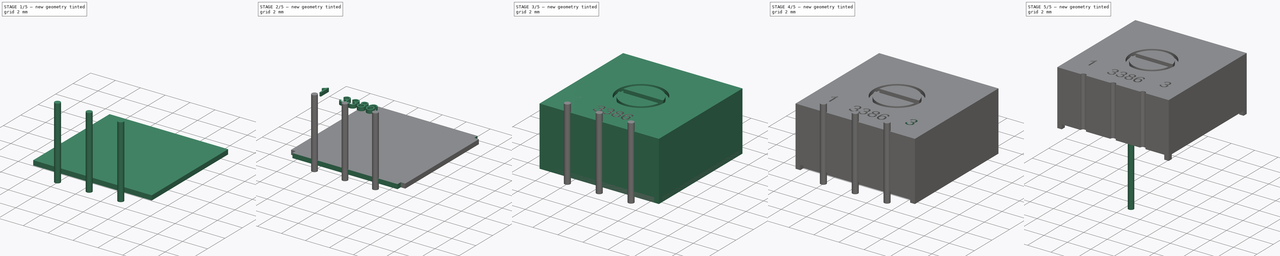
[diagram: build sequence overview — one tinted view per stage of 5, left to right]
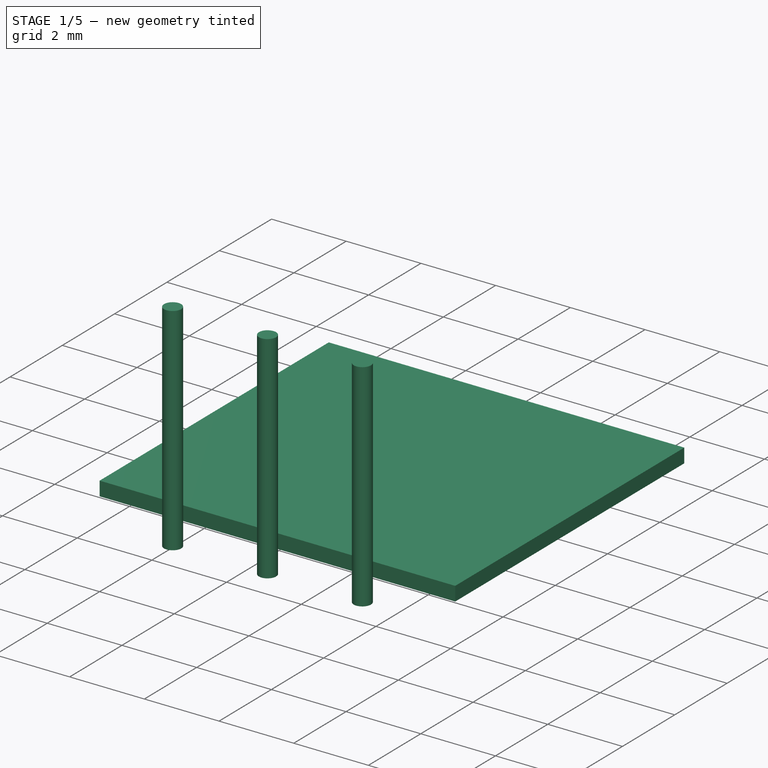
[diagram: stage 1 of 5 — iso view after this stage's code; geometry added in this stage tinted green]
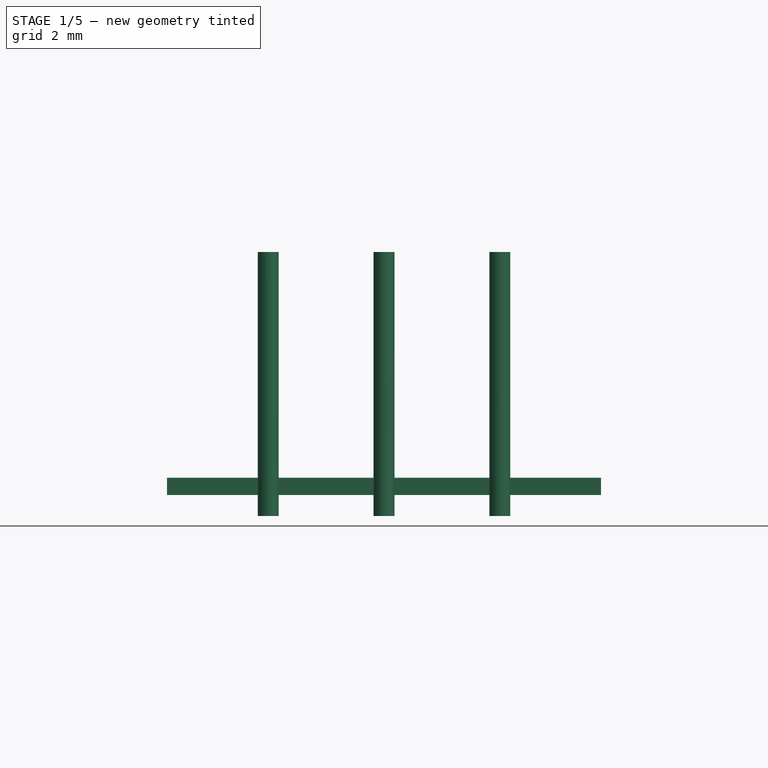
[diagram: stage 1 of 5 — front view after this stage's code; geometry added in this stage tinted green]
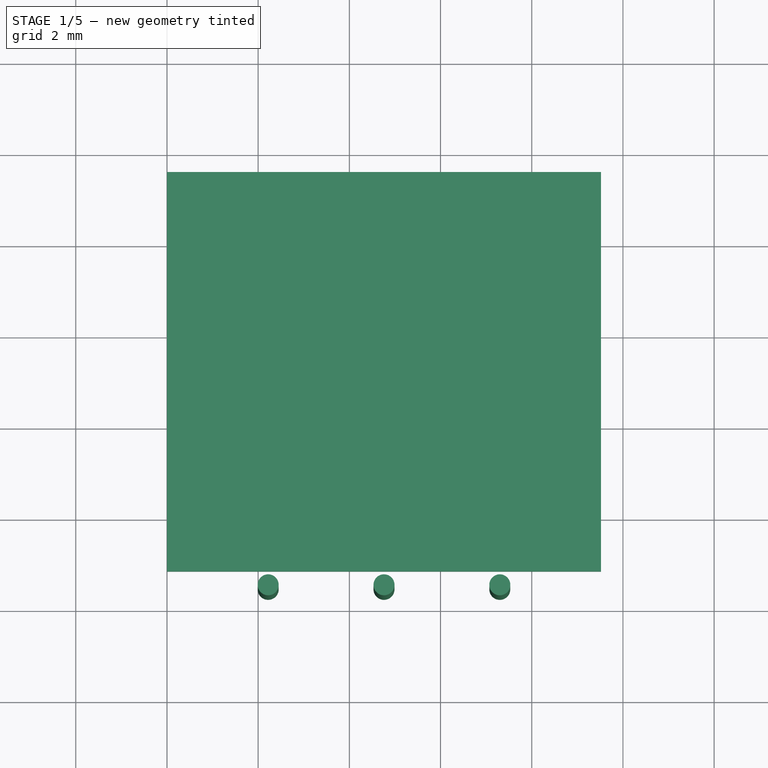
[diagram: stage 1 of 5 — top view after this stage's code; geometry added in this stage tinted green]
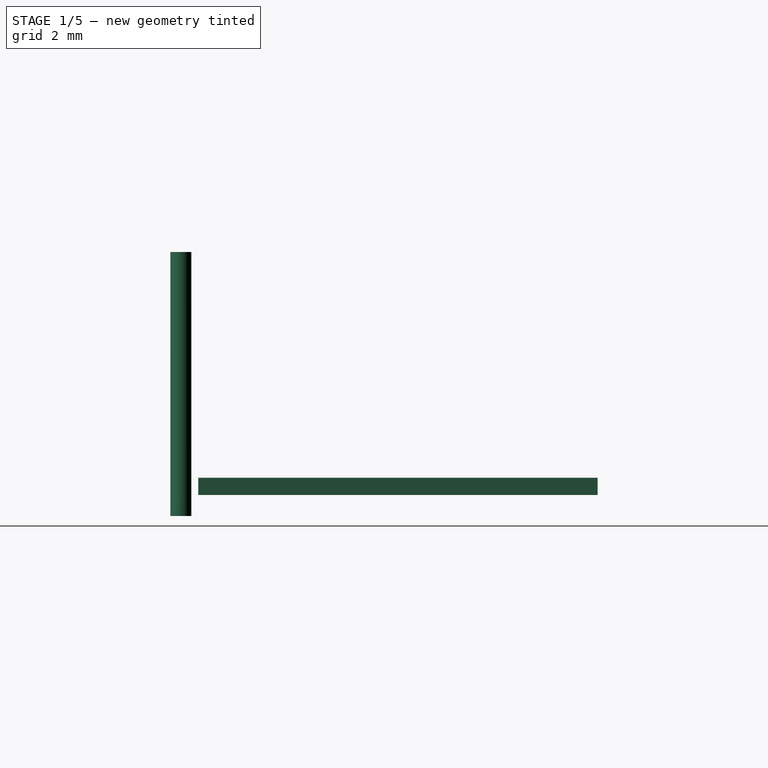
[diagram: stage 1 of 5 — right view after this stage's code; geometry added in this stage tinted green]
FCSTD DOCUMENT  (FreeCAD 0.18R4 (GitTag))
Label: 3386p
License: All rights reserved
LicenseURL: http://en.wikipedia.org/wiki/All_rights_reserved
objects: PartDesign::Body×9, Part::Cut×8, Sketcher::SketchObject×5, PartDesign::Pad×5, PartDesign::FeatureBase×4, Part::Part2DObjectPython×3, Part::FeaturePython×3, Part::Box×2, Part::MultiFuse×1
note: 45 computed .brp shape members not serialized (recipe doc carries the construction recipe); baked Part::Feature solids carry a one-line shape summary decoded from their .brp

FEATURE [Part::Box] Box001  label="Куб001"
  AttacherType = Attacher::AttachEngine3D
  Height = 0.38
  Length = 9.52
  Placement = pos=(0,-9.14,0) rot=(0,0,1;0rad)
  Width = 8.76
FEATURE [Sketcher::SketchObject] Sketch004
  MapMode = 5
  Support = -> [XY_Plane006]
  sketch-geometry (5):
    g0: Circle CenterX=4.76 CenterY=-7.32 CenterZ=0 NormalX=0 NormalY=0 NormalZ=1 AngleXU=0 Radius=0.23
    g1: LineSegment [constr] StartX=0 StartY=-9.38035 StartZ=0 EndX=9.52 EndY=-9.38035 EndZ=0
    g2: LineSegment [constr] StartX=9.52 StartY=-9.38035 StartZ=0 EndX=9.52 EndY=0 EndZ=0
    g3: LineSegment [constr] StartX=9.52 StartY=0 StartZ=0 EndX=0 EndY=0 EndZ=0
    g4: LineSegment [constr] StartX=0 StartY=0 StartZ=0 EndX=0 EndY=-9.38035 EndZ=0
  constraints (13):
    c: Radius(g0) = 0.23
    c: Coincident(g1,g2)
    c: Coincident(g2,g3)
    c: Coincident(g3,g4)
    c: Coincident(g4,g1)
    c: Horizontal(g1)
    c: Horizontal(g3)
    c: Vertical(g2)
    c: Vertical(g4)
    c: DistanceX(g1,g1) = 9.52
    c: Coincident(g3,g-1)
    c: Distance(g0,g-2) = 4.76
    c: Distance(g0,g-1) = 7.32
FEATURE [PartDesign::Pad] Pad005
  Length = 5.79
  Length2 = 100
  Profile = -> Sketch004
  Reversed = true
  Type = 0
FEATURE [PartDesign::Body] Body006  label="pin_004"
  Group = -> [Sketch004,Pad005]
  Origin = -> Origin006
  Placement = pos=(0,-2.2,0.33) rot=(0,0,1;0rad)
  Tip = -> Pad005
FEATURE [PartDesign::FeatureBase] Clone002
  BaseFeature = -> Body006
  Placement = pos=(0,-2.2,0.33) rot=(0,0,1;0rad)
FEATURE [PartDesign::Body] Body007
  Group = -> [Clone002]
  Origin = -> Origin007
  Placement = pos=(2.54,0,0) rot=(0,0,1;0rad)
  Tip = -> Clone002
FEATURE [PartDesign::FeatureBase] Clone003
  BaseFeature = -> Body006
  Placement = pos=(0,-2.2,0.33) rot=(0,0,1;0rad)
FEATURE [PartDesign::Body] Body008
  Group = -> [Clone003]
  Origin = -> Origin008
  Placement = pos=(-2.54,0,0) rot=(0,0,1;0rad)
  Tip = -> Clone003
FEATURE [Part::MultiFuse] Fusion
  Placement = pos=(0,0,5) rot=(0,0,1;0rad)
  Shapes = -> [Body008,Body007,Body006]
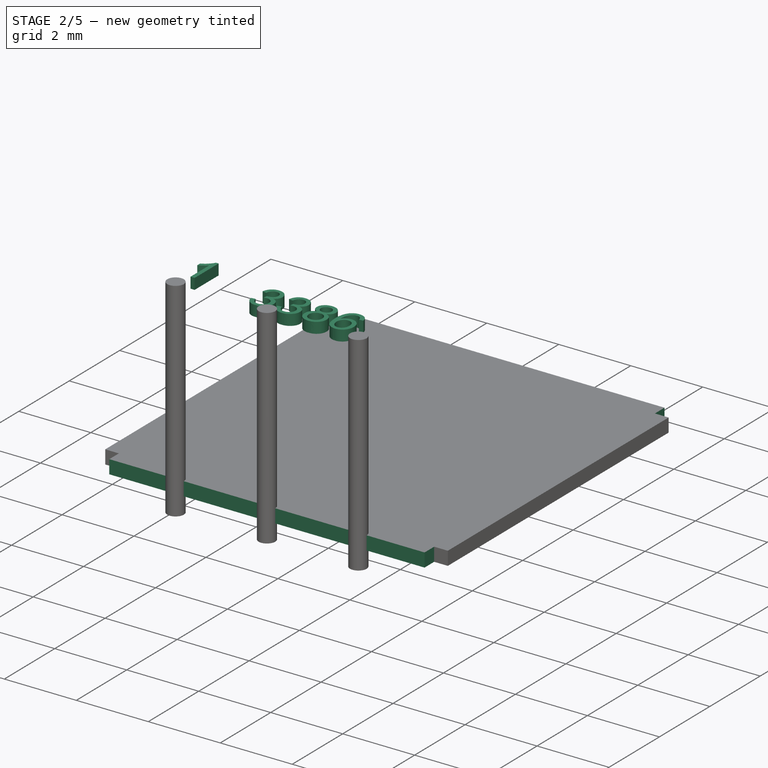
[diagram: stage 2 of 5 — iso view after this stage's code; geometry added in this stage tinted green]
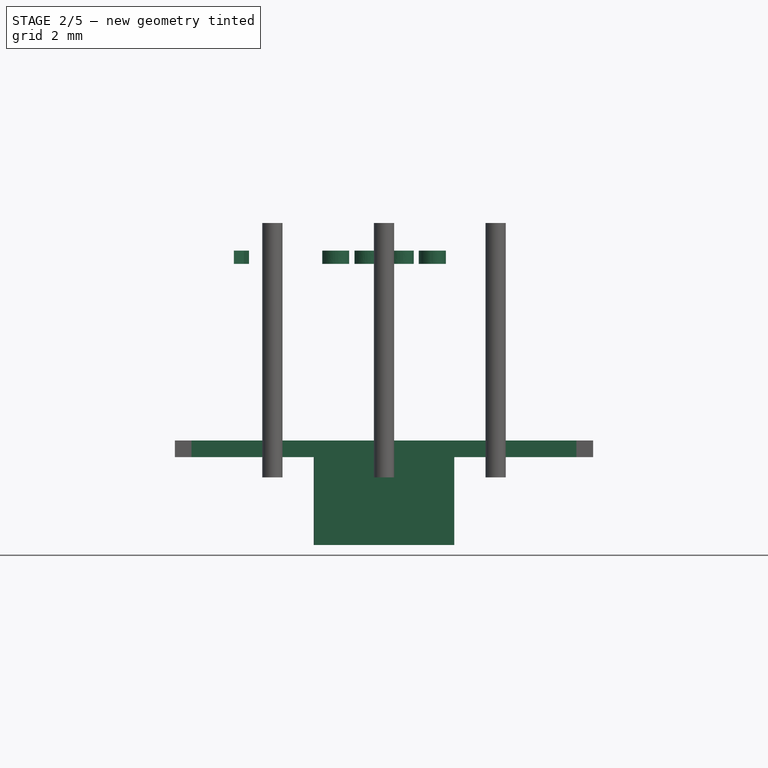
[diagram: stage 2 of 5 — front view after this stage's code; geometry added in this stage tinted green]
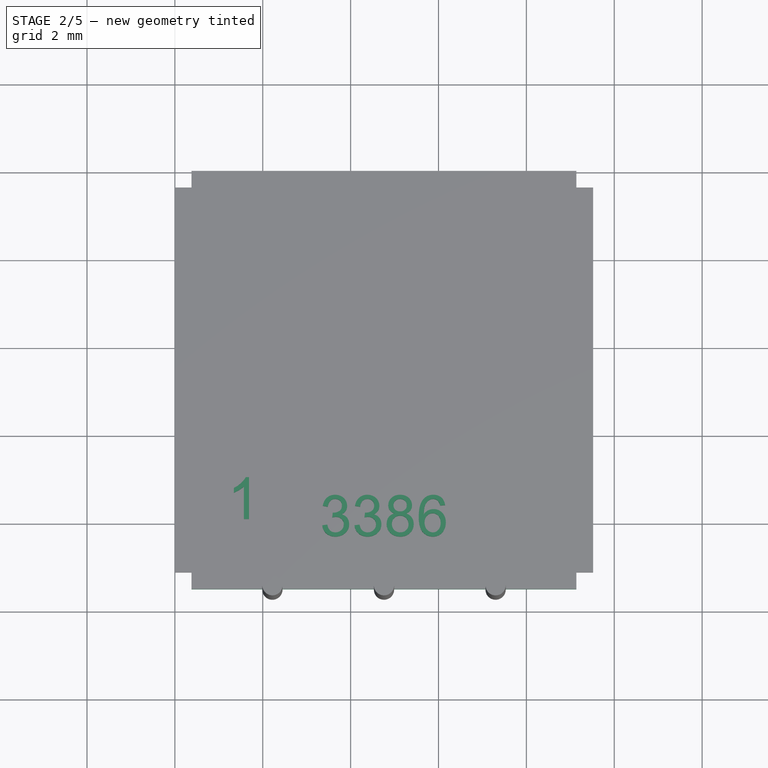
[diagram: stage 2 of 5 — top view after this stage's code; geometry added in this stage tinted green]
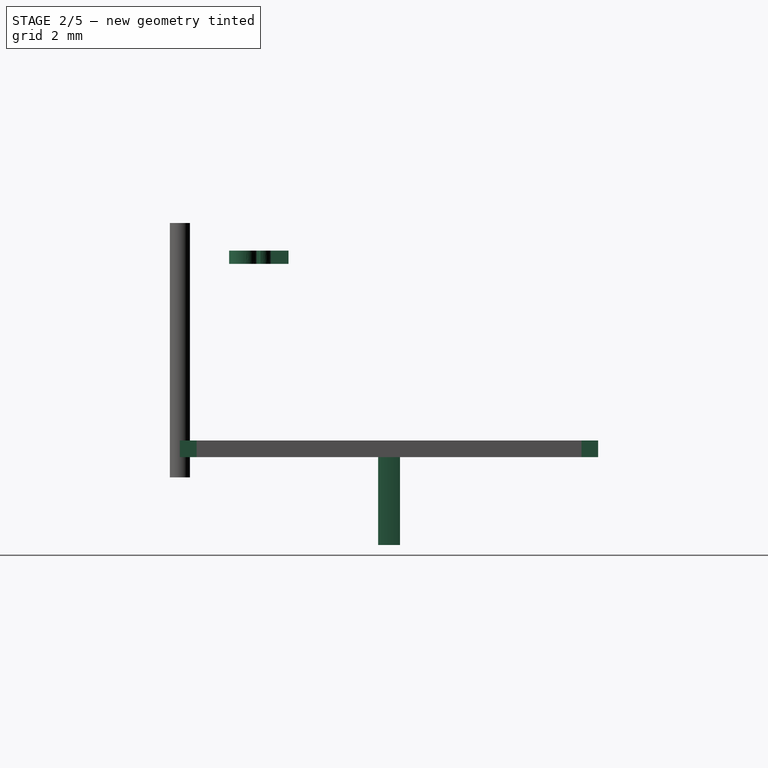
[diagram: stage 2 of 5 — right view after this stage's code; geometry added in this stage tinted green]
FEATURE [PartDesign::Body] Body005  label="circle"
  Group = -> [Sketch003,Pad003]
  Origin = -> Origin005
  Placement = pos=(0,0,4.7) rot=(0,0,1;0rad)
  Tip = -> Pad003
FEATURE [PartDesign::Pad] Pad004
  Length = 2
  Length2 = 100
  Profile = -> Sketch002
  Reversed = true
  Type = 0
FEATURE [Part::Part2DObjectPython] ShapeString  # Draft 2D object (typed FeaturePython)
  FontFile = <userpath>/Documents/Atmel Studio/7.0/avr_simple_clock/Kicad/arial.ttf
  Placement = pos=(1,-3.4,4.4) rot=(0,0,1;0rad)
  Size = 1
  String = 3386
  Tracking = 0
FEATURE [Part::FeaturePython] Wall  # Arch/BIM object (typed FeaturePython)
  Align = 2
  Base = -> ShapeString
  BlockHeight = 0
  BlockLength = 0
  CountBroken = 0
  CountEntire = 0
  Face = 0
  Height = 0.3
  HorizontalArea = 0
  IfcRole = 156
  Joint = 0
  Length = 0
  MakeBlocks = false
  MoveWithHost = false
  Normal = (0,0,0)
  OffsetFirst = 0
  OffsetSecond = 0
  PerimeterLength = 0
  Placement = pos=(2.3,-5,0) rot=(0,0,1;0rad)
  VerticalArea = 0
  Width = 200
FEATURE [Part::Part2DObjectPython] ShapeString001  # Draft 2D object (typed FeaturePython)
  FontFile = <userpath>/Documents/arial.ttf
  Placement = pos=(0.2,-6,4.4) rot=(0,0,1;0rad)
  Size = 1
  String = 1
  Tracking = 0
FEATURE [Part::Part2DObjectPython] ShapeString002  # Draft 2D object (typed FeaturePython)
  FontFile = <userpath>/Documents/arial.ttf
  Placement = pos=(5.5,-6,4.4) rot=(0,0,1;0rad)
  Size = 1
  String = 3
  Tracking = 0
FEATURE [Part::FeaturePython] Wall001  # Arch/BIM object (typed FeaturePython)
  Align = 2
  Base = -> ShapeString001
  BlockHeight = 0
  BlockLength = 0
  CountBroken = 0
  CountEntire = 0
  Face = 0
  Height = 0.3
  HorizontalArea = 0.135902
  IfcRole = 156
  Joint = 0
  Length = 0
  MakeBlocks = false
  MoveWithHost = false
  Normal = (0,0,0)
  OffsetFirst = 0
  OffsetSecond = 0
  PerimeterLength = 2.63155
  Placement = pos=(1,-2,0) rot=(0,0,1;0rad)
  VerticalArea = 0.789466
  Width = 200
FEATURE [Part::Box] Box  label="Куб"
  AttacherType = Attacher::AttachEngine3D
  Height = 0.38
  Length = 8.76
  Placement = pos=(0.38,-9.52,0) rot=(0,0,1;0rad)
  Width = 9.52
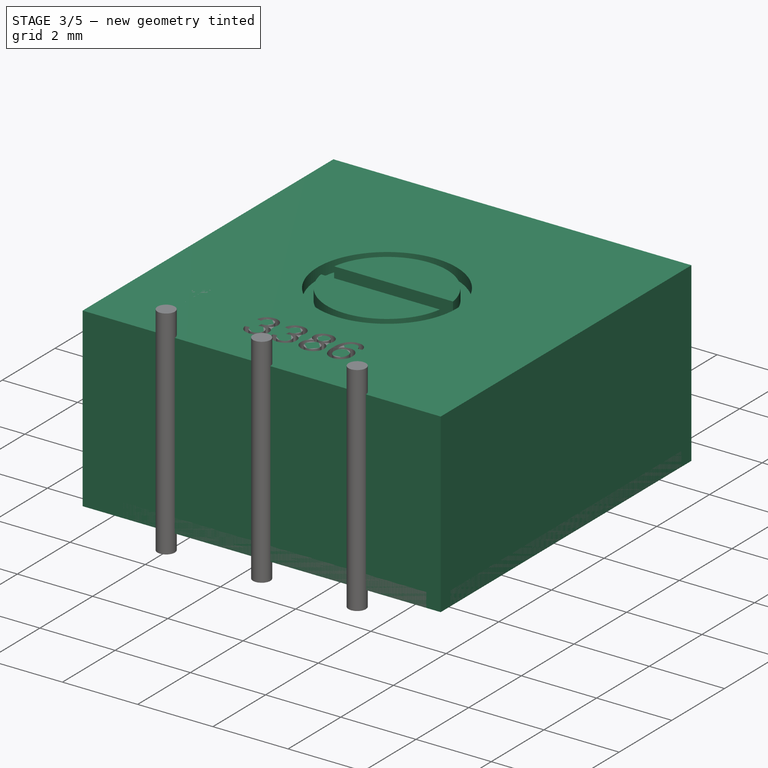
[diagram: stage 3 of 5 — iso view after this stage's code; geometry added in this stage tinted green]
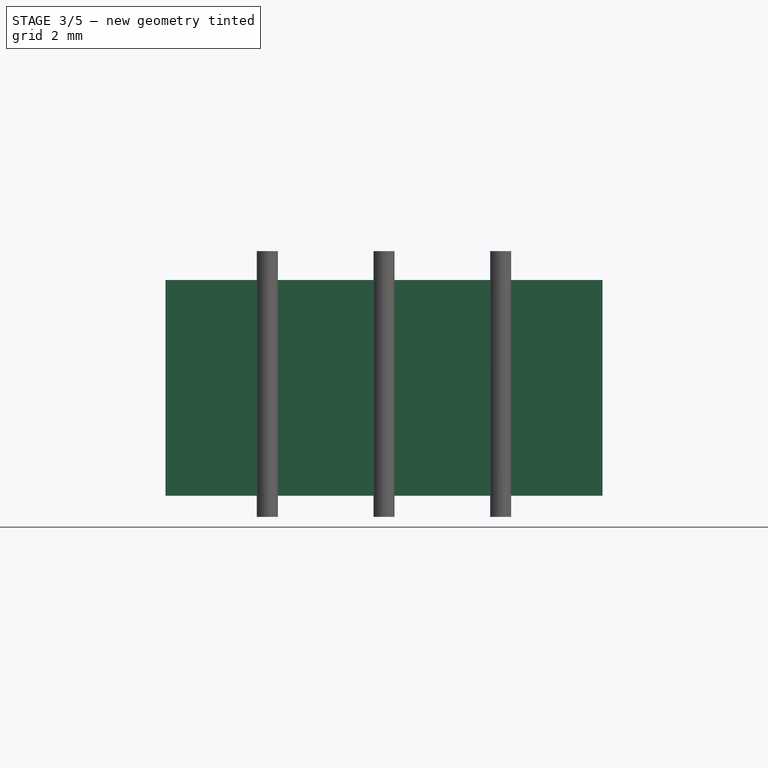
[diagram: stage 3 of 5 — front view after this stage's code; geometry added in this stage tinted green]
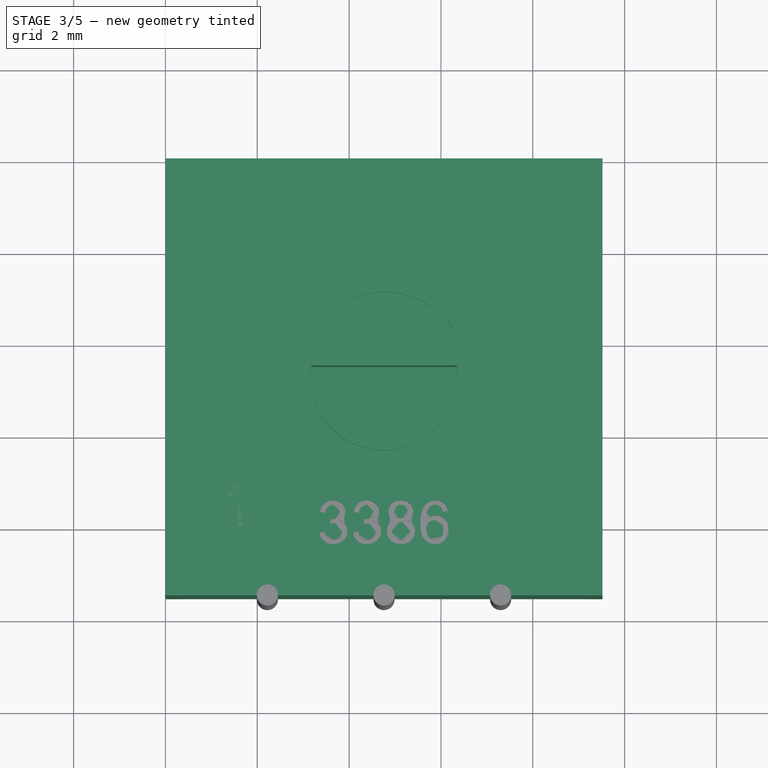
[diagram: stage 3 of 5 — top view after this stage's code; geometry added in this stage tinted green]
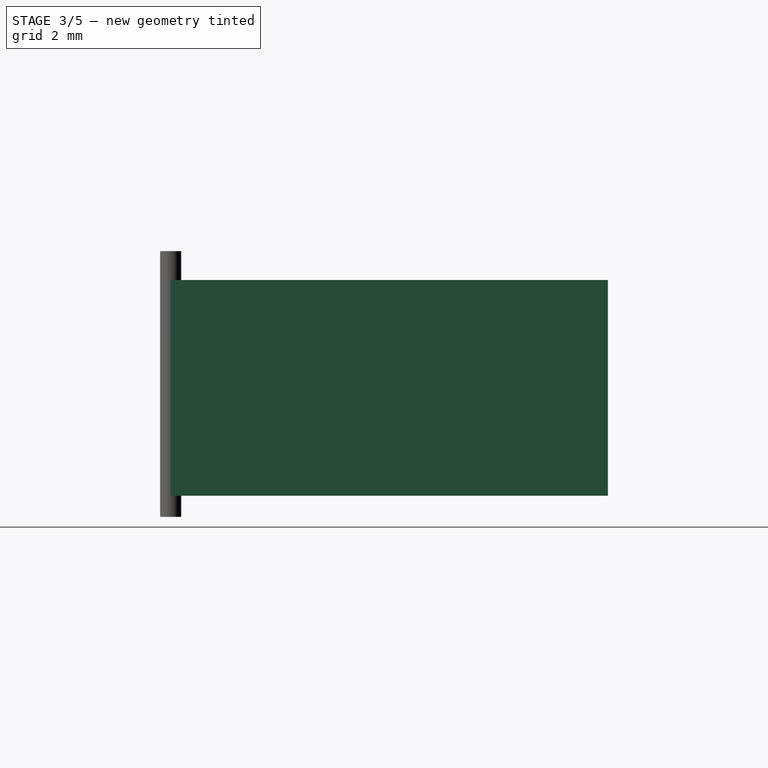
[diagram: stage 3 of 5 — right view after this stage's code; geometry added in this stage tinted green]
FEATURE [Sketcher::SketchObject] Sketch
  MapMode = 5
  Support = -> [XY_Plane]
  sketch-geometry (7):
    g0: LineSegment StartX=0 StartY=0 StartZ=0 EndX=9.52 EndY=0 EndZ=0
    g1: LineSegment StartX=9.52 StartY=0 StartZ=0 EndX=9.52 EndY=-9.52 EndZ=0
    g2: LineSegment StartX=9.52 StartY=-9.52 StartZ=0 EndX=0 EndY=-9.52 EndZ=0
    g3: LineSegment StartX=0 StartY=-9.52 StartZ=0 EndX=0 EndY=0 EndZ=0
    g4: GeomPoint X=-0.919239 Y=2.97257 Z=0
    g5: GeomPoint X=0 Y=0 Z=0
    g6: GeomPoint X=0 Y=0 Z=0
  constraints (13):
    c: Coincident(g0,g1)
    c: Coincident(g1,g2)
    c: Coincident(g2,g3)
    c: Coincident(g3,g0)
    c: Horizontal(g0)
    c: Horizontal(g2)
    c: Vertical(g1)
    c: Vertical(g3)
    c: DistanceX(g0,g0) = 9.52
    c: DistanceY(g1,g1) = 9.52
    c: Coincident(g0,g5)
    c: Coincident(g0,g6)
    c: Coincident(g-1,g0)
FEATURE [PartDesign::Pad] Pad
  Length = 4.7
  Length2 = 100
  Profile = -> Sketch
  Type = 0
FEATURE [PartDesign::Body] Body003  label="pin_3"
  BaseFeature = -> Pad001
  Group = -> [Clone001]
  Origin = -> Origin003
  Placement = pos=(2.54,2.54,0.33) rot=(0,0,1;0rad)
  Tip = -> Clone001
FEATURE [Sketcher::SketchObject] Sketch002
  MapMode = 5
  Support = -> [XY_Plane004]
  sketch-geometry (13):
    g0: LineSegment [constr] StartX=0 StartY=0 StartZ=0 EndX=9.52 EndY=0 EndZ=0
    g1: LineSegment [constr] StartX=9.52 StartY=0 StartZ=0 EndX=9.52 EndY=-9.52 EndZ=0
    g2: LineSegment [constr] StartX=9.52 StartY=-9.52 StartZ=0 EndX=0 EndY=-9.52 EndZ=0
    g3: LineSegment [constr] StartX=0 StartY=-9.52 StartZ=0 EndX=0 EndY=0 EndZ=0
    g4: LineSegment [constr] StartX=0 StartY=0 StartZ=0 EndX=9.52 EndY=-9.52 EndZ=0
    g5: LineSegment [constr] StartX=9.52 StartY=-1.4e-15 StartZ=0 EndX=-1.8e-15 EndY=-9.52 EndZ=0
    g6: GeomPoint X=4.76 Y=-4.76 Z=0
    g7: Circle [constr] CenterX=4.76 CenterY=-4.76 CenterZ=0 NormalX=0 NormalY=0 NormalZ=1 AngleXU=0 Radius=1.6
    g8: Circle [constr] CenterX=4.76 CenterY=-4.76 CenterZ=0 NormalX=0 NormalY=0 NormalZ=1 AngleXU=0 Radius=1.85
    g9: LineSegment StartX=3.17965 StartY=-4.51 StartZ=0 EndX=6.34035 EndY=-4.51 EndZ=0
    g10: LineSegment StartX=3.17965 StartY=-5.01 StartZ=0 EndX=6.34035 EndY=-5.01 EndZ=0
    g11: ArcOfCircle CenterX=4.7295 CenterY=-4.76 CenterZ=0 NormalX=0 NormalY=0 NormalZ=1 AngleXU=0 Radius=1.56988 StartAngle=2.98166 EndAngle=3.30152
    g12: ArcOfCircle CenterX=4.80429 CenterY=-4.76 CenterZ=0 NormalX=0 NormalY=0 NormalZ=1 AngleXU=0 Radius=1.55627 StartAngle=6.12185 EndAngle=6.44453
  constraints (30):
    c: Coincident(g2,g3)
    c: Coincident(g3,g0)
    c: Horizontal(g0)
    c: Horizontal(g2)
    c: Vertical(g3)
    c: DistanceY(g1,g1) = 9.52
    c: Coincident(g0,g-1)
    c: Coincident(g0,g4)
    c: Coincident(g1,g4)
    c: PointOnObject(g6,g4)
    c: PointOnObject(g6,g5)
    c: Coincident(g6,g7)
    c: Radius(g7) = 1.6
    c: Radius(g8) = 1.85
    c: Coincident(g8,g6)
    c: DistanceX(g2,g2) = 9.52
    c: Horizontal(g9)
    c: Horizontal(g10)
    c: Equal(g9,g10)
    c: PointOnObject(g9,g7)
    c: PointOnObject(g10,g7)
    c: PointOnObject(g9,g7)
    c: PointOnObject(g10,g7)
    c: DistanceX(g6) = 4.76
    c: DistanceY(g6) = -4.76
    c: Distance(g9,g10) = 0.5
    c: Coincident(g11,g10)
    c: Coincident(g11,g9)
    c: Coincident(g9,g12)
    c: Coincident(g10,g12)
FEATURE [Sketcher::SketchObject] Sketch003
  MapMode = 5
  Support = -> [XY_Plane005]
  sketch-geometry (9):
    g0: LineSegment [constr] StartX=0 StartY=0 StartZ=0 EndX=9.52 EndY=0 EndZ=0
    g1: LineSegment [constr] StartX=9.52 StartY=0 StartZ=0 EndX=9.52 EndY=-9.52 EndZ=0
    g2: LineSegment [constr] StartX=9.52 StartY=-9.52 StartZ=0 EndX=0 EndY=-9.52 EndZ=0
    g3: LineSegment [constr] StartX=0 StartY=-9.52 StartZ=0 EndX=0 EndY=0 EndZ=0
    g4: Circle CenterX=4.76 CenterY=-4.76 CenterZ=0 NormalX=0 NormalY=0 NormalZ=1 AngleXU=0 Radius=1.6
    g5: Circle CenterX=4.76 CenterY=-4.76 CenterZ=0 NormalX=0 NormalY=0 NormalZ=1 AngleXU=0 Radius=1.85
    g6: LineSegment [constr] StartX=0 StartY=0 StartZ=0 EndX=9.52 EndY=-9.52 EndZ=0
    g7: LineSegment [constr] StartX=0 StartY=-9.52 StartZ=0 EndX=9.52 EndY=0 EndZ=0
    g8: GeomPoint X=4.76 Y=-4.76 Z=0
  constraints (21):
    c: Coincident(g0,g1)
    c: Coincident(g1,g2)
    c: Coincident(g2,g3)
    c: Coincident(g3,g0)
    c: Horizontal(g0)
    c: Horizontal(g2)
    c: Vertical(g1)
    c: DistanceY(g1,g1) = 9.52
    c: DistanceX(g2,g2) = 9.52
    c: Coincident(g0,g-1)
    c: Coincident(g4,g5)
    c: PointOnObject(g8,g6)
    c: PointOnObject(g8,g7)
    c: Equal(g7,g6)
    c: Coincident(g0,g6)
    c: Coincident(g0,g7)
    c: Coincident(g1,g6)
    c: Coincident(g2,g7)
    c: Coincident(g4,g8)
    c: Radius(g4) = 1.6
    c: Radius(g5) = 1.85
FEATURE [PartDesign::Pad] Pad003
  Length = 0.3
  Length2 = 100
  Profile = -> Sketch003
  Reversed = true
  Type = 0
FEATURE [PartDesign::Body] Body004  label="croos"
  Group = -> [Sketch002,Pad004]
  Origin = -> Origin004
  Placement = pos=(0,0,4.7) rot=(0,0,1;0rad)
  Tip = -> Pad004
FEATURE [Part::Cut] Cut
  Base = -> Body
  Tool = -> Body004
FEATURE [Part::Cut] Cut001
  Base = -> Cut
  Tool = -> Body005
FEATURE [Part::Cut] Cut002
  Base = -> Cut001
  Tool = -> Wall
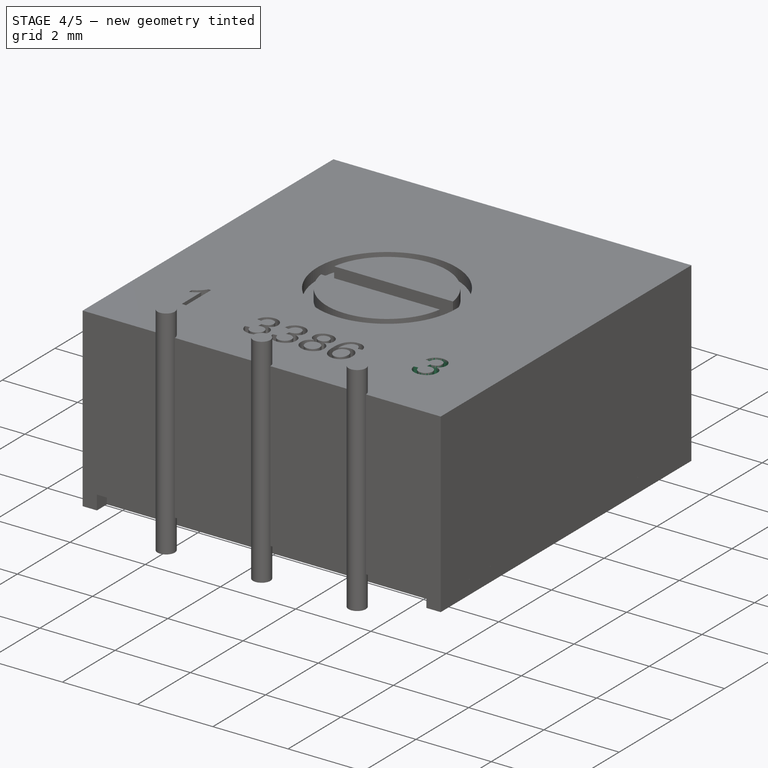
[diagram: stage 4 of 5 — iso view after this stage's code; geometry added in this stage tinted green]
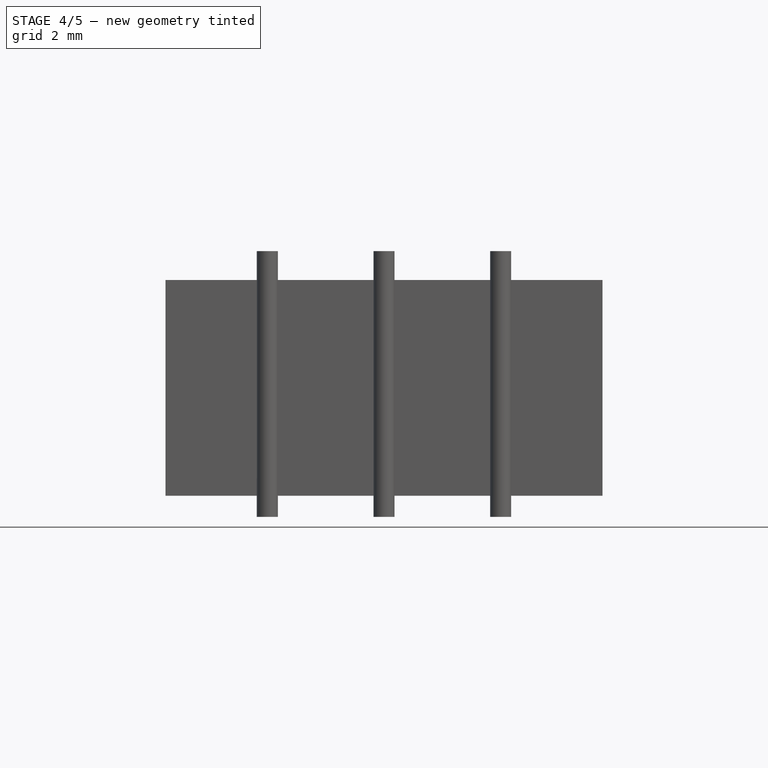
[diagram: stage 4 of 5 — front view after this stage's code; geometry added in this stage tinted green]
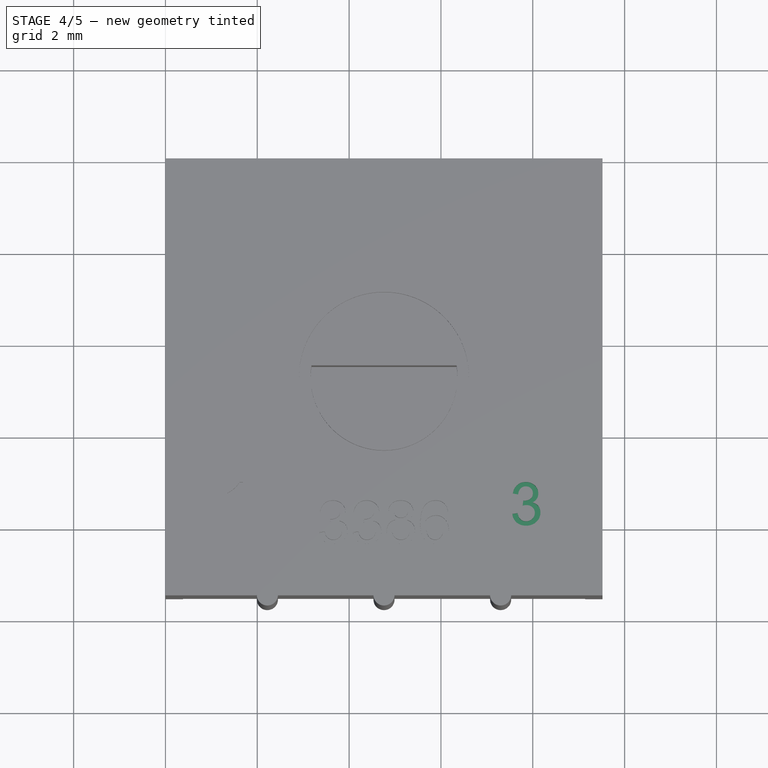
[diagram: stage 4 of 5 — top view after this stage's code; geometry added in this stage tinted green]
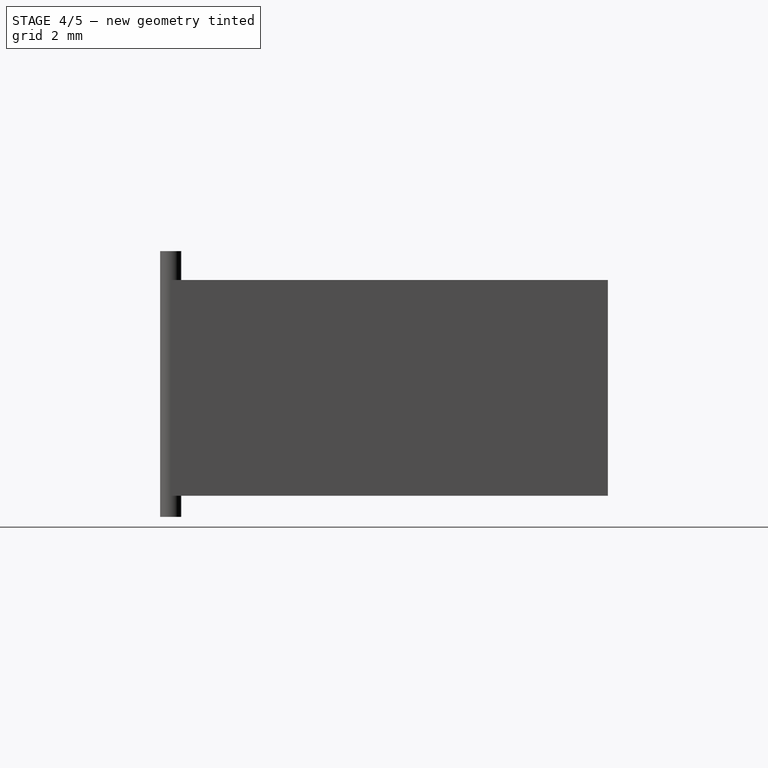
[diagram: stage 4 of 5 — right view after this stage's code; geometry added in this stage tinted green]
FEATURE [Part::FeaturePython] Wall002  # Arch/BIM object (typed FeaturePython)
  Align = 2
  Base = -> ShapeString002
  BlockHeight = 0
  BlockLength = 0
  CountBroken = 0
  CountEntire = 0
  Face = 0
  Height = 0.3
  HorizontalArea = 0
  IfcRole = 156
  Joint = 0
  Length = 0
  MakeBlocks = false
  MoveWithHost = false
  Normal = (0,0,0)
  OffsetFirst = 0
  OffsetSecond = 0
  PerimeterLength = 0
  Placement = pos=(2,-2,0) rot=(0,0,1;0rad)
  VerticalArea = 0
  Width = 200
FEATURE [Part::Cut] Cut003
  Base = -> Cut002
  Tool = -> Wall001
FEATURE [Part::Cut] Cut004
  Base = -> Cut003
  Tool = -> Wall002
FEATURE [Part::Cut] Cut005
  Base = -> Cut004
  Tool = -> Box
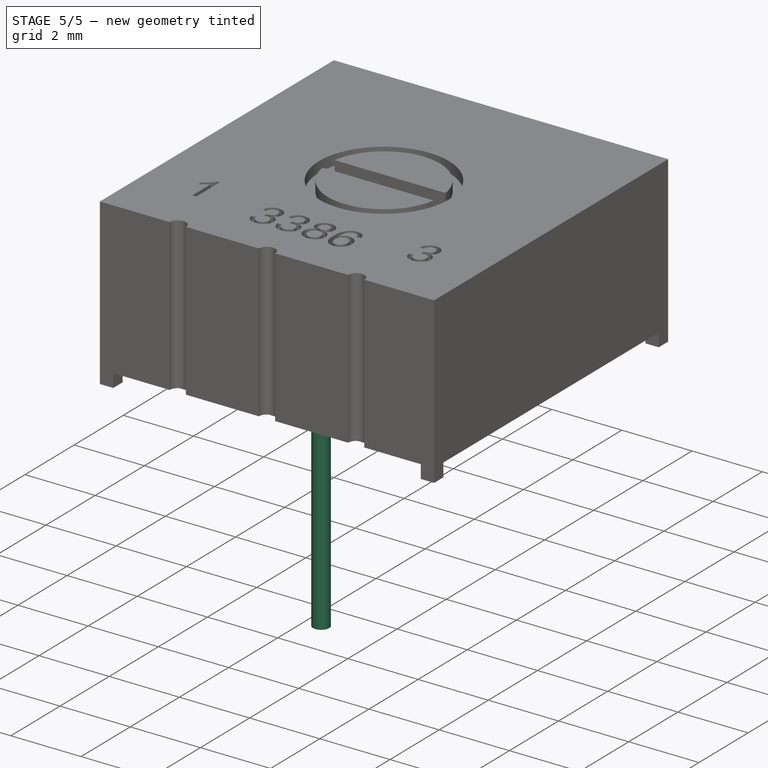
[diagram: stage 5 of 5 — iso view after this stage's code; geometry added in this stage tinted green]
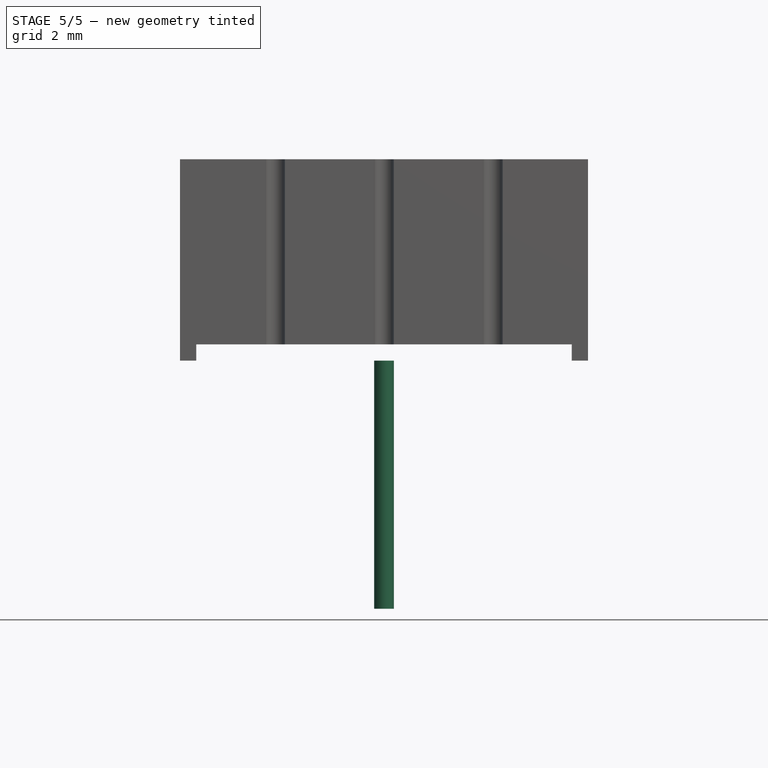
[diagram: stage 5 of 5 — front view after this stage's code; geometry added in this stage tinted green]
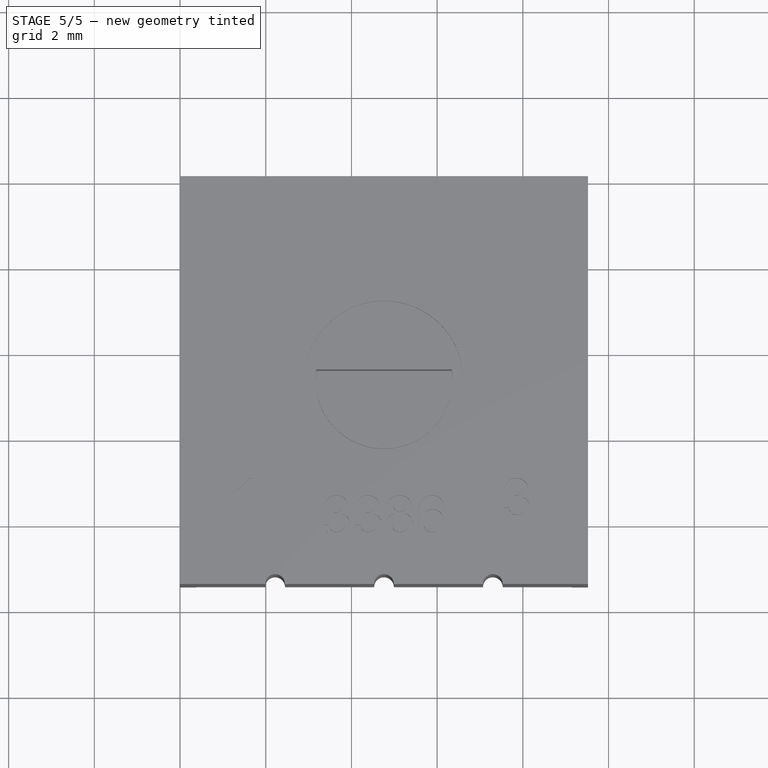
[diagram: stage 5 of 5 — top view after this stage's code; geometry added in this stage tinted green]
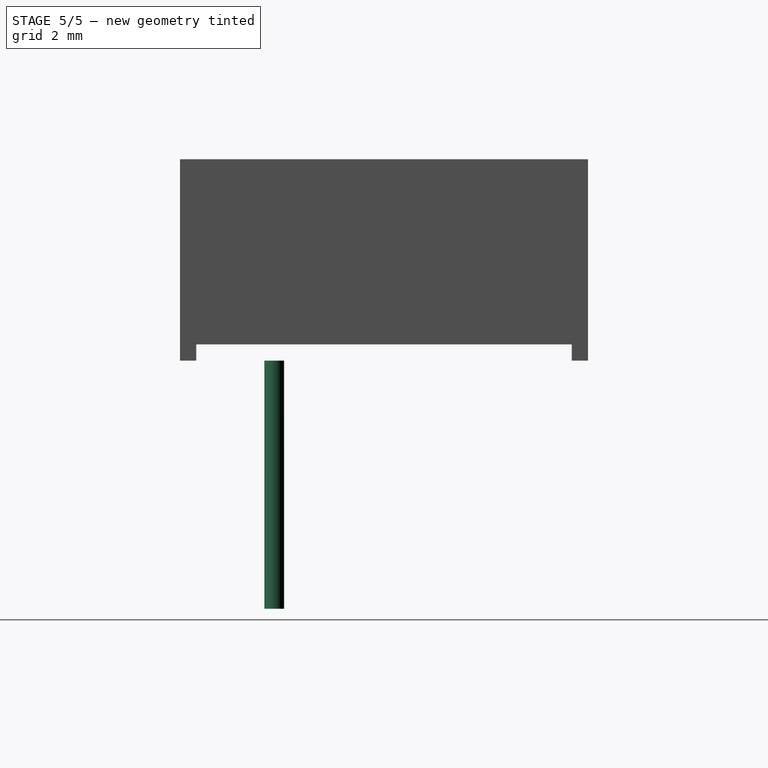
[diagram: stage 5 of 5 — right view after this stage's code; geometry added in this stage tinted green]
FEATURE [PartDesign::Body] Body  label="cube"
  Group = -> [Sketch,Pad]
  Origin = -> Origin
  Tip = -> Pad
FEATURE [Sketcher::SketchObject] Sketch001
  MapMode = 5
  Support = -> [XY_Plane001]
  sketch-geometry (5):
    g0: Circle CenterX=4.76 CenterY=-7.32 CenterZ=0 NormalX=0 NormalY=0 NormalZ=1 AngleXU=0 Radius=0.23
    g1: LineSegment [constr] StartX=0 StartY=-9.38035 StartZ=0 EndX=9.52 EndY=-9.38035 EndZ=0
    g2: LineSegment [constr] StartX=9.52 StartY=-9.38035 StartZ=0 EndX=9.52 EndY=0 EndZ=0
    g3: LineSegment [constr] StartX=9.52 StartY=0 StartZ=0 EndX=0 EndY=0 EndZ=0
    g4: LineSegment [constr] StartX=0 StartY=0 StartZ=0 EndX=0 EndY=-9.38035 EndZ=0
  constraints (13):
    c: Radius(g0) = 0.23
    c: Coincident(g1,g2)
    c: Coincident(g2,g3)
    c: Coincident(g3,g4)
    c: Coincident(g4,g1)
    c: Horizontal(g1)
    c: Horizontal(g3)
    c: Vertical(g2)
    c: Vertical(g4)
    c: DistanceX(g1,g1) = 9.52
    c: Coincident(g3,g-1)
    c: Distance(g0,g-2) = 4.76
    c: Distance(g0,g-1) = 7.32
FEATURE [PartDesign::Pad] Pad001
  Length = 5.79
  Length2 = 100
  Profile = -> Sketch001
  Reversed = true
  Type = 0
FEATURE [PartDesign::Body] Body001  label="pin_1"
  Group = -> [Sketch001,Pad001]
  Origin = -> Origin001
  Placement = pos=(0,0,0.33) rot=(0,0,1;0rad)
  Tip = -> Pad001
FEATURE [PartDesign::FeatureBase] Clone
  BaseFeature = -> Body001
FEATURE [PartDesign::Body] Body002  label="pin_2"
  BaseFeature = -> Body001
  Group = -> [Clone]
  Origin = -> Origin002
  Placement = pos=(-2.54,2.54,0.33) rot=(0,0,1;0rad)
  Tip = -> Clone
FEATURE [PartDesign::FeatureBase] Clone001
  BaseFeature = -> Pad001
FEATURE [Part::Cut] Cut006
  Base = -> Cut005
  Tool = -> Box001
FEATURE [Part::Cut] Cut007
  Base = -> Cut006
  Tool = -> Fusion
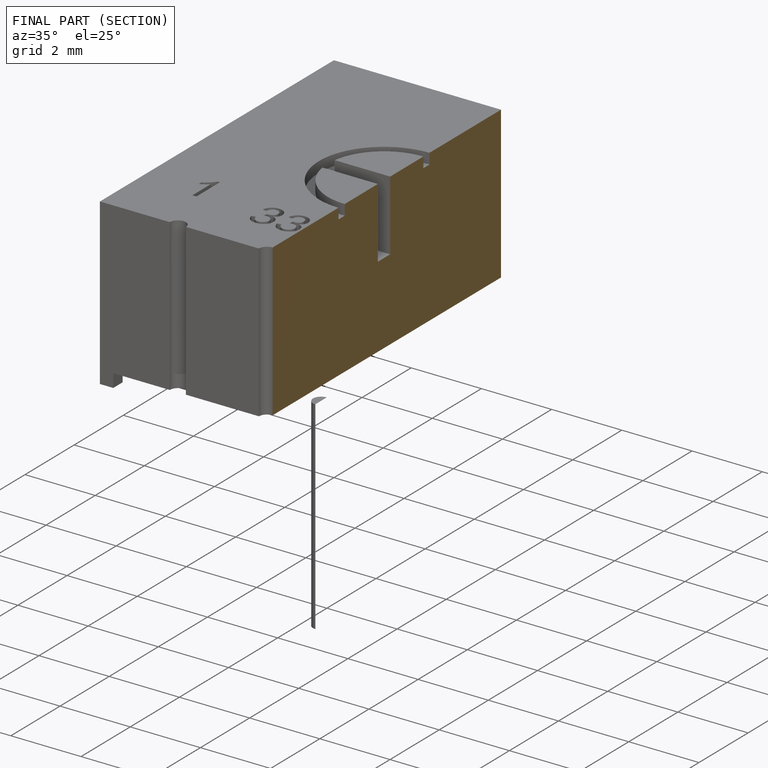
[diagram: finished part — half-section view (interior)]
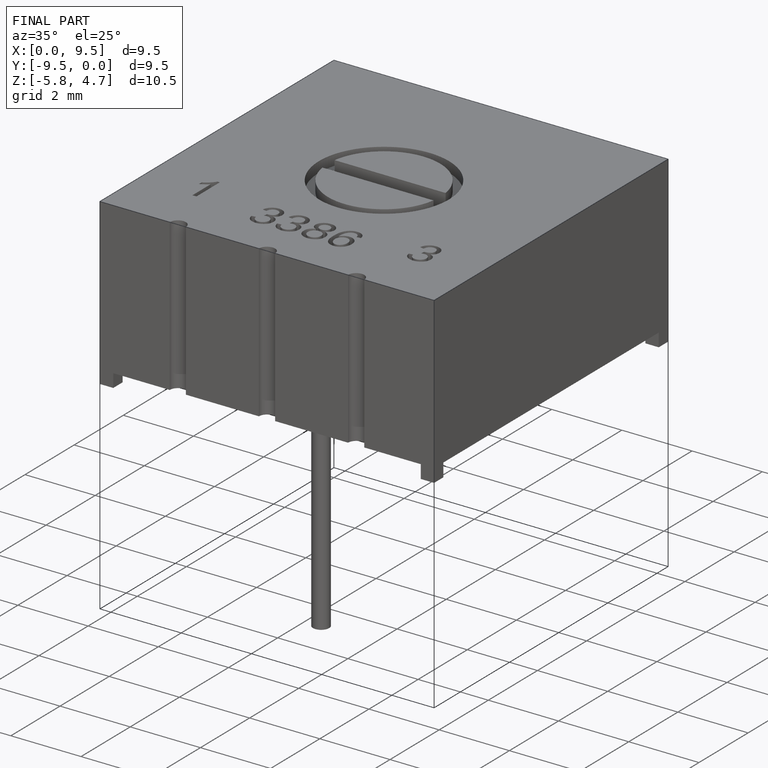
[diagram: finished part — iso view with bounding-box wireframe]
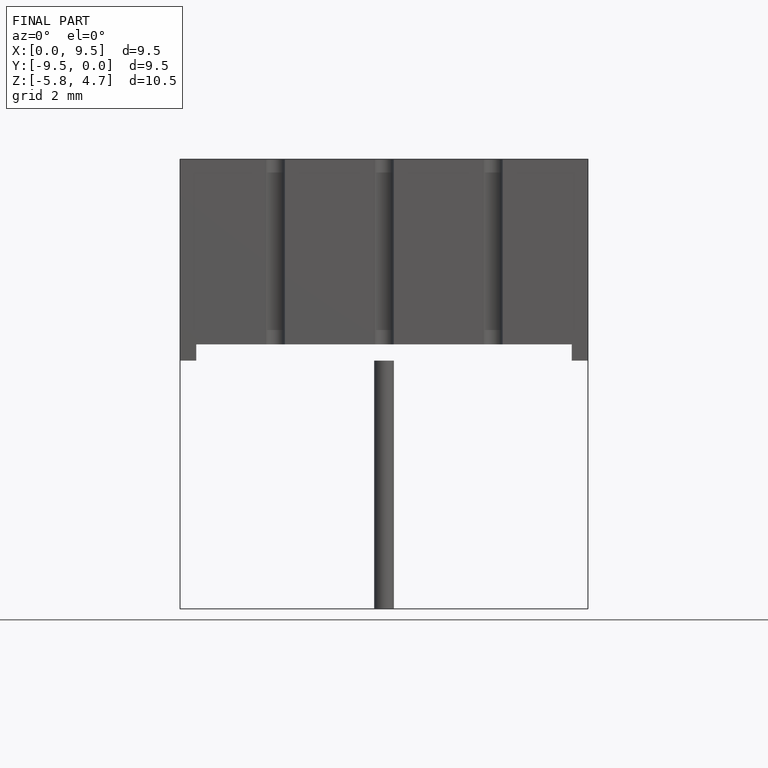
[diagram: finished part — front view with bounding-box wireframe]
